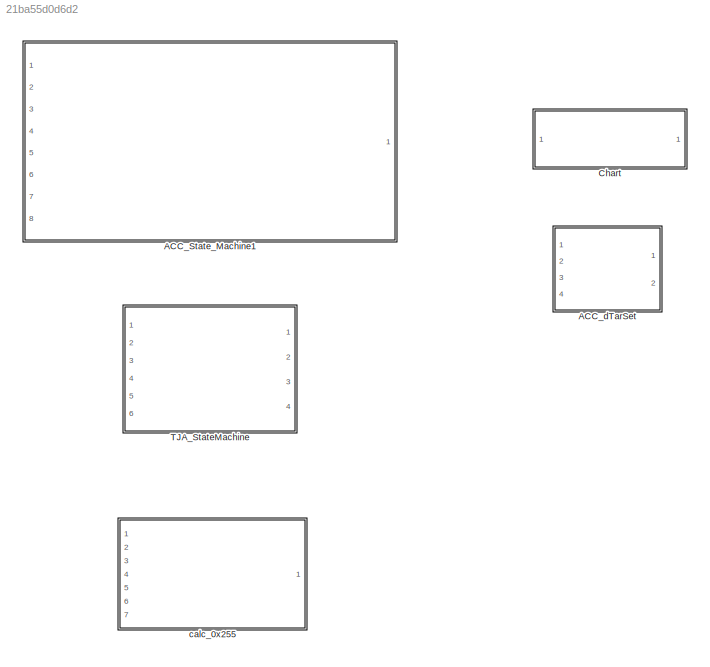
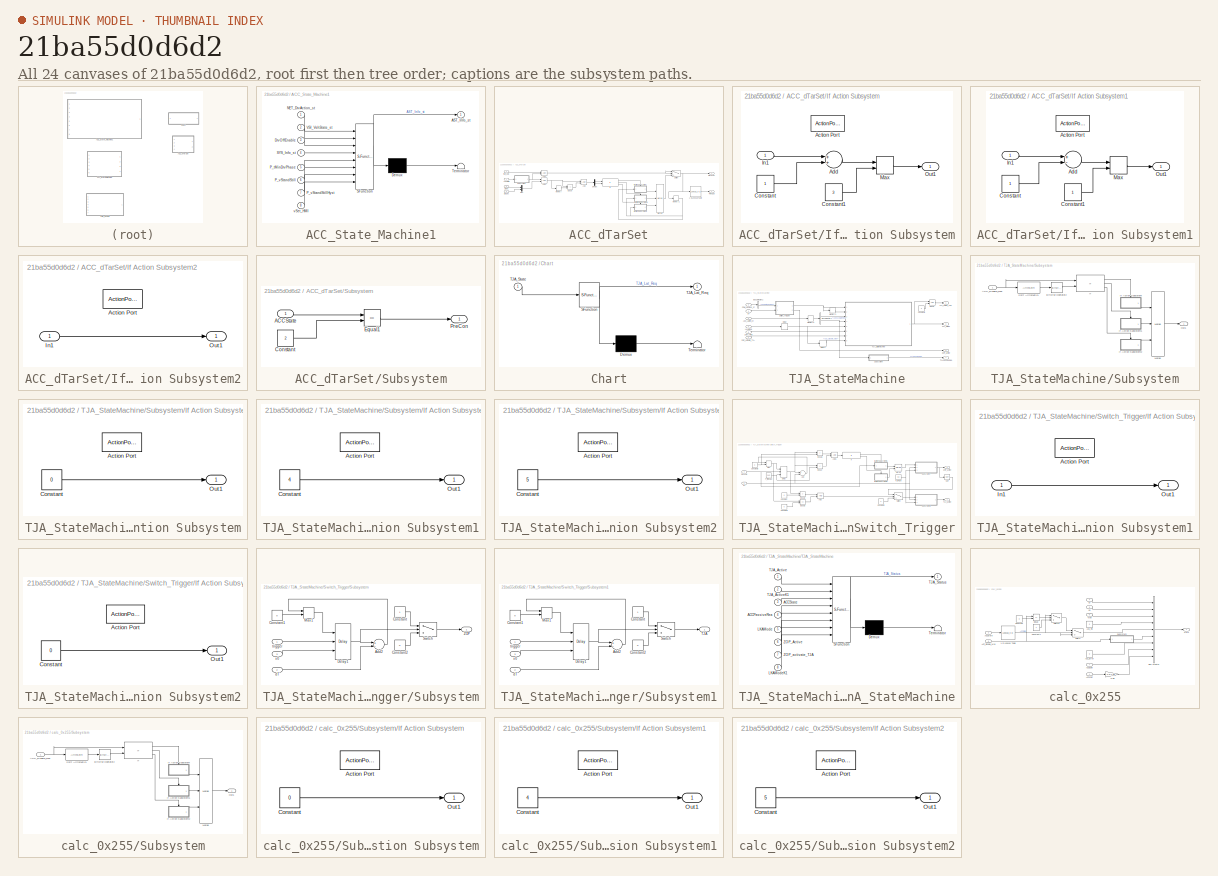
[diagram: thumbnail index - all 24 canvases of the model, root first then tree order]
MODEL slx_21ba55d0d6d2
KIND model
CONFIG AbsTol = auto
CONFIG EnableMultiTasking = off
CONFIG FixedStep = auto
CONFIG MaxStep = auto
CONFIG MinStep = auto
CONFIG RelTol = 1e-3
CONFIG SampleTimeConstraint = Unconstrained
CONFIG Solver = VariableStepAuto
CONFIG SolverName = VariableStepAuto
CONFIG StartTime = 0.0
CONFIG StopTime = 10.0
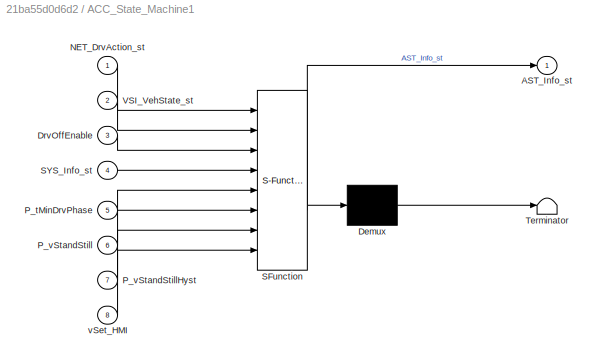
BLOCK [SubSystem] ACC_State_Machine1
  ErrorFcn = Stateflow.Translate.translate
  PermitHierarchicalResolution = ExplicitOnly
  Ports = [8, 1]
  RequestExecContextInheritance = off
  SFBlockType = Chart
  TreatAsAtomicUnit = on
BLOCK [Demux] ACC_State_Machine1/ Demux 
  Outputs = 1
  Ports = [1, 1]
BLOCK [S-Function] ACC_State_Machine1/ SFunction 
  EnableBusSupport = on
  FunctionName = sf_sfun
  PortCounts = [8 2]
  Ports = [8, 2]
  SFcnIsStateOwnerBlock = off
  SFunctionDeploymentMode = off
  Tag = Stateflow S-Function TJA_StateMachine 1
BLOCK [Terminator] ACC_State_Machine1/ Terminator 
BLOCK [Outport] ACC_State_Machine1/AST_Info_st
  IconDisplay = Port number
BLOCK [Inport] ACC_State_Machine1/DrvOffEnable
  IconDisplay = Port number
  Port = 3
BLOCK [Inport] ACC_State_Machine1/NET_DrvAction_st
  IconDisplay = Port number
BLOCK [Inport] ACC_State_Machine1/P_tMinDrvPhase
  IconDisplay = Port number
  Port = 5
BLOCK [Inport] ACC_State_Machine1/P_vStandStill
  IconDisplay = Port number
  Port = 6
BLOCK [Inport] ACC_State_Machine1/P_vStandStillHyst
  IconDisplay = Port number
  Port = 7
BLOCK [Inport] ACC_State_Machine1/SYS_Info_st
  IconDisplay = Port number
  Port = 4
BLOCK [Inport] ACC_State_Machine1/VSI_VehState_st
  IconDisplay = Port number
  Port = 2
BLOCK [Inport] ACC_State_Machine1/vSet_HMI
  IconDisplay = Port number
  Port = 8
BLOCK [SubSystem] ACC_dTarSet
  Ports = [4, 2]
  RequestExecContextInheritance = off
BLOCK [Lookup_n-D] ACC_dTarSet/1-D Lookup Table
  BreakpointsForDimension1 = [1 2 3]
  InternalRulePriority = Speed
  InterpMethod = Flat
  NumberOfTableDimensions = 1
  Ports = [1, 1]
  RndMeth = Simplest
  Table = [1.2 1.8 2.1]
BLOCK [Inport] ACC_dTarSet/ACCState
  IconDisplay = Port number
BLOCK [Logic] ACC_dTarSet/AND
  AllPortsSameDT = off
  OutDataTypeStr = boolean
  Ports = [2, 1]
BLOCK [Logic] ACC_dTarSet/AND1
  AllPortsSameDT = off
  OutDataTypeStr = boolean
  Ports = [2, 1]
BLOCK [Logic] ACC_dTarSet/AND2
  AllPortsSameDT = off
  OutDataTypeStr = boolean
  Ports = [2, 1]
BLOCK [Demux] ACC_dTarSet/Demux
  DisplayOption = bar
  Outputs = 2
  Ports = [1, 2]
BLOCK [Inport] ACC_dTarSet/DisDec
  IconDisplay = Port number
  Port = 3
BLOCK [Inport] ACC_dTarSet/DisInc
  IconDisplay = Port number
  Port = 2
BLOCK [Outport] ACC_dTarSet/DisLevel
  IconDisplay = Port number
  Port = 2
BLOCK [RelationalOperator] ACC_dTarSet/Equal
  InputSameDT = off
  Operator = ~=
  OutDataTypeStr = boolean
  Ports = [2, 1]
  RndMeth = Simplest
BLOCK [SubSystem] ACC_dTarSet/If Action Subsystem
  Ports = [1, 1, 0, 0, 0, 0, 0, 1]
  RequestExecContextInheritance = off
  TreatAsAtomicUnit = on
BLOCK [ActionPort] ACC_dTarSet/If Action Subsystem/Action Port
BLOCK [Sum] ACC_dTarSet/If Action Subsystem/Add
  InputSameDT = off
  OutDataTypeStr = Inherit: Inherit via internal rule
  Ports = [2, 1]
  SaturateOnIntegerOverflow = off
BLOCK [Constant] ACC_dTarSet/If Action Subsystem/Constant
  OutDataTypeStr = single
BLOCK [Constant] ACC_dTarSet/If Action Subsystem/Constant1
  OutDataTypeStr = single
  Value = 3
BLOCK [Inport] ACC_dTarSet/If Action Subsystem/In1
  IconDisplay = Port number
BLOCK [MinMax] ACC_dTarSet/If Action Subsystem/Max
  InputSameDT = off
  Inputs = 2
  Ports = [2, 1]
  SaturateOnIntegerOverflow = off
BLOCK [Outport] ACC_dTarSet/If Action Subsystem/Out1
  IconDisplay = Port number
BLOCK [SubSystem] ACC_dTarSet/If Action Subsystem1
  Ports = [1, 1, 0, 0, 0, 0, 0, 1]
  RequestExecContextInheritance = off
  TreatAsAtomicUnit = on
BLOCK [ActionPort] ACC_dTarSet/If Action Subsystem1/Action Port
BLOCK [Sum] ACC_dTarSet/If Action Subsystem1/Add
  InputSameDT = off
  Inputs = +-
  OutDataTypeStr = Inherit: Inherit via internal rule
  Ports = [2, 1]
  SaturateOnIntegerOverflow = off
BLOCK [Constant] ACC_dTarSet/If Action Subsystem1/Constant
  OutDataTypeStr = single
BLOCK [Constant] ACC_dTarSet/If Action Subsystem1/Constant1
  OutDataTypeStr = single
BLOCK [Inport] ACC_dTarSet/If Action Subsystem1/In1
  IconDisplay = Port number
BLOCK [MinMax] ACC_dTarSet/If Action Subsystem1/Max
  Function = max
  InputSameDT = off
  Inputs = 2
  Ports = [2, 1]
  SaturateOnIntegerOverflow = off
BLOCK [Outport] ACC_dTarSet/If Action Subsystem1/Out1
  IconDisplay = Port number
BLOCK [SubSystem] ACC_dTarSet/If Action Subsystem2
  Ports = [1, 1, 0, 0, 0, 0, 0, 1]
  RequestExecContextInheritance = off
  TreatAsAtomicUnit = on
BLOCK [ActionPort] ACC_dTarSet/If Action Subsystem2/Action Port
BLOCK [Inport] ACC_dTarSet/If Action Subsystem2/In1
  IconDisplay = Port number
BLOCK [Outport] ACC_dTarSet/If Action Subsystem2/Out1
  IconDisplay = Port number
BLOCK [If] ACC_dTarSet/If1
  ElseIfExpressions = u2 == 1
  IfExpression = u1 == 1
  NumInputs = 2
  Ports = [2, 3]
BLOCK [Memory] ACC_dTarSet/Memory
BLOCK [Memory] ACC_dTarSet/Memory1
  InitialCondition = 3
BLOCK [Merge] ACC_dTarSet/Merge
  InitialOutput = 0
  Inputs = 3
  Ports = [3, 1]
BLOCK [Mux] ACC_dTarSet/Mux
  DisplayOption = bar
  Inputs = 2
  Ports = [2, 1]
BLOCK [SubSystem] ACC_dTarSet/Subsystem
  Ports = [1, 1]
  RequestExecContextInheritance = off
BLOCK [Inport] ACC_dTarSet/Subsystem/ACCState
  IconDisplay = Port number
BLOCK [Constant] ACC_dTarSet/Subsystem/Constant
  OutDataTypeStr = single
  Value = 2
BLOCK [RelationalOperator] ACC_dTarSet/Subsystem/Equal1
  InputSameDT = off
  Operator = ==
  OutDataTypeStr = boolean
  Ports = [2, 1]
  RndMeth = Simplest
BLOCK [Outport] ACC_dTarSet/Subsystem/PreCon
  IconDisplay = Port number
BLOCK [Switch] ACC_dTarSet/Switch
  Criteria = u2 > Threshold
  InputSameDT = off
  SaturateOnIntegerOverflow = off
BLOCK [Outport] ACC_dTarSet/TimeGap
  IconDisplay = Port number
BLOCK [Inport] ACC_dTarSet/tSet_HMI
  IconDisplay = Port number
  Port = 4
BLOCK [SubSystem] Chart
  ErrorFcn = Stateflow.Translate.translate
  PermitHierarchicalResolution = ExplicitOnly
  Ports = [1, 1]
  RequestExecContextInheritance = off
  SFBlockType = Chart
  TreatAsAtomicUnit = on
BLOCK [Demux] Chart/ Demux 
  Outputs = 1
  Ports = [1, 1]
BLOCK [S-Function] Chart/ SFunction 
  EnableBusSupport = on
  FunctionName = sf_sfun
  PortCounts = [1 2]
  Ports = [1, 2]
  SFcnIsStateOwnerBlock = off
  SFunctionDeploymentMode = off
  Tag = Stateflow S-Function TJA_StateMachine 6
BLOCK [Terminator] Chart/ Terminator 
BLOCK [Outport] Chart/TJA_Lat_Req
  IconDisplay = Port number
BLOCK [Inport] Chart/TJA_State
  IconDisplay = Port number
BLOCK [SubSystem] TJA_StateMachine
  Ports = [6, 4]
  RequestExecContextInheritance = off
BLOCK [Inport] TJA_StateMachine/ACC_LgtCtrl_st
  IconDisplay = Port number
  Port = 3
BLOCK [BusSelector] TJA_StateMachine/Bus Selector1
  OutputAsBus = off
  OutputSignals = ACCVLCMainReq,ACC_Disable_Msk
  Ports = [1, 2]
BLOCK [BusSelector] TJA_StateMachine/Bus Selector2
  OutputAsBus = off
  OutputSignals = x1E1.CCSwStsRsmSwA
  Ports = [1, 1]
BLOCK [Inport] TJA_StateMachine/COM_VehBus_st
  IconDisplay = Port number
  Port = 2
BLOCK [Constant] TJA_StateMachine/Constant3
  OutDataTypeStr = single
  Value = 3
BLOCK [Delay] TJA_StateMachine/Delay
  DelayLength = 1
  InputPortMap = u0
  Ports = [1, 1]
BLOCK [Delay] TJA_StateMachine/Delay1
  DelayLength = 1
  InputPortMap = u0
  Ports = [1, 1]
BLOCK [RelationalOperator] TJA_StateMachine/Equal
  InputSameDT = off
  OutDataTypeStr = boolean
  Ports = [2, 1]
  RndMeth = Simplest
BLOCK [Inport] TJA_StateMachine/LKAMode
  IconDisplay = Port number
  Port = 4
BLOCK [Memory] TJA_StateMachine/Memory1
BLOCK [Memory] TJA_StateMachine/Memory2
BLOCK [SubSystem] TJA_StateMachine/Subsystem
  Ports = [1, 1]
  RequestExecContextInheritance = off
BLOCK [Inport] TJA_StateMachine/Subsystem/ACC_Disable_Msk
  IconDisplay = Port number
BLOCK [Reference] TJA_StateMachine/Subsystem/Bitwise Operator2  REF=simulink/Logic and Bit
Operations/Bitwise
Operator
  Ports = [1, 1]
  SourceBlock = simulink/Logic and Bit\nOperations/Bitwise\nOperator
  SourceProductBaseCode = SL
  SourceProductName = Simulink
  SourceType = Bitwise Operator
BLOCK [If] TJA_StateMachine/Subsystem/If
  ElseIfExpressions = u2 == 1
  IfExpression = u1 == 0
  NumInputs = 2
  Ports = [2, 3]
BLOCK [SubSystem] TJA_StateMachine/Subsystem/If Action Subsystem
  Ports = [0, 1, 0, 0, 0, 0, 0, 1]
  RequestExecContextInheritance = off
  TreatAsAtomicUnit = on
BLOCK [ActionPort] TJA_StateMachine/Subsystem/If Action Subsystem/Action Port
BLOCK [Constant] TJA_StateMachine/Subsystem/If Action Subsystem/Constant
  OutDataTypeStr = single
  Value = 0
BLOCK [Outport] TJA_StateMachine/Subsystem/If Action Subsystem/Out1
  IconDisplay = Port number
BLOCK [SubSystem] TJA_StateMachine/Subsystem/If Action Subsystem1
  Ports = [0, 1, 0, 0, 0, 0, 0, 1]
  RequestExecContextInheritance = off
  TreatAsAtomicUnit = on
BLOCK [ActionPort] TJA_StateMachine/Subsystem/If Action Subsystem1/Action Port
BLOCK [Constant] TJA_StateMachine/Subsystem/If Action Subsystem1/Constant
  OutDataTypeStr = single
  Value = 4
BLOCK [Outport] TJA_StateMachine/Subsystem/If Action Subsystem1/Out1
  IconDisplay = Port number
BLOCK [SubSystem] TJA_StateMachine/Subsystem/If Action Subsystem2
  Ports = [0, 1, 0, 0, 0, 0, 0, 1]
  RequestExecContextInheritance = off
  TreatAsAtomicUnit = on
BLOCK [ActionPort] TJA_StateMachine/Subsystem/If Action Subsystem2/Action Port
BLOCK [Constant] TJA_StateMachine/Subsystem/If Action Subsystem2/Constant
  OutDataTypeStr = single
  Value = 5
BLOCK [Outport] TJA_StateMachine/Subsystem/If Action Subsystem2/Out1
  IconDisplay = Port number
BLOCK [Merge] TJA_StateMachine/Subsystem/Merge
  Inputs = 3
  Ports = [3, 1]
BLOCK [Outport] TJA_StateMachine/Subsystem/Out1
  IconDisplay = Port number
BLOCK [ArithShift] TJA_StateMachine/Subsystem/Shift Arithmetic1
  BitShiftDirection = Right
  BitShiftNumber = 3
  InputPortMap = u0
  Ports = [1, 1]
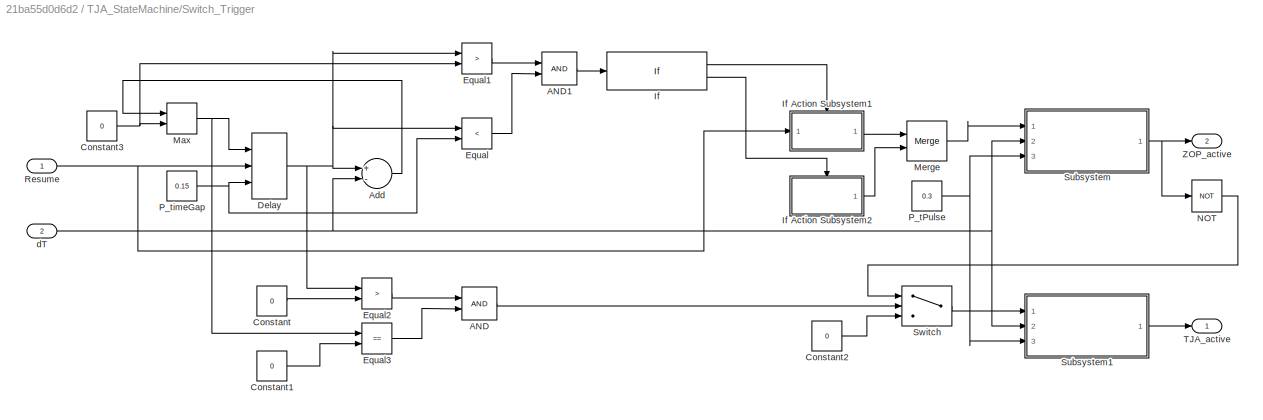
BLOCK [SubSystem] TJA_StateMachine/Switch_Trigger
  Ports = [2, 2]
  RequestExecContextInheritance = off
BLOCK [Logic] TJA_StateMachine/Switch_Trigger/AND
  AllPortsSameDT = off
  OutDataTypeStr = boolean
  Ports = [2, 1]
BLOCK [Logic] TJA_StateMachine/Switch_Trigger/AND1
  AllPortsSameDT = off
  OutDataTypeStr = boolean
  Ports = [2, 1]
BLOCK [Sum] TJA_StateMachine/Switch_Trigger/Add
  InputSameDT = off
  Inputs = +-
  OutDataTypeStr = Inherit: Inherit via internal rule
  Ports = [2, 1]
  SaturateOnIntegerOverflow = off
BLOCK [Constant] TJA_StateMachine/Switch_Trigger/Constant
  Value = 0
BLOCK [Constant] TJA_StateMachine/Switch_Trigger/Constant1
  Value = 0
BLOCK [Constant] TJA_StateMachine/Switch_Trigger/Constant2
  Value = 0
BLOCK [Constant] TJA_StateMachine/Switch_Trigger/Constant3
  OutDataTypeStr = single
  Value = 0
BLOCK [Delay] TJA_StateMachine/Switch_Trigger/Delay
  DelayLength = 1
  ExternalReset = Falling
  InitialConditionSource = Input port
  InputPortMap = u0,r5,p4
  Ports = [3, 1]
BLOCK [RelationalOperator] TJA_StateMachine/Switch_Trigger/Equal
  InputSameDT = off
  Operator = <
  OutDataTypeStr = boolean
  Ports = [2, 1]
  RndMeth = Simplest
BLOCK [RelationalOperator] TJA_StateMachine/Switch_Trigger/Equal1
  InputSameDT = off
  Operator = >
  OutDataTypeStr = boolean
  Ports = [2, 1]
  RndMeth = Simplest
BLOCK [RelationalOperator] TJA_StateMachine/Switch_Trigger/Equal2
  InputSameDT = off
  Operator = >
  OutDataTypeStr = boolean
  Ports = [2, 1]
  RndMeth = Simplest
BLOCK [RelationalOperator] TJA_StateMachine/Switch_Trigger/Equal3
  InputSameDT = off
  Operator = ==
  OutDataTypeStr = boolean
  Ports = [2, 1]
  RndMeth = Simplest
BLOCK [If] TJA_StateMachine/Switch_Trigger/If
  IfExpression = u1 == 1
  Ports = [1, 2]
BLOCK [SubSystem] TJA_StateMachine/Switch_Trigger/If Action Subsystem1
  Ports = [1, 1, 0, 0, 0, 0, 0, 1]
  RequestExecContextInheritance = off
  TreatAsAtomicUnit = on
BLOCK [ActionPort] TJA_StateMachine/Switch_Trigger/If Action Subsystem1/Action Port
BLOCK [Inport] TJA_StateMachine/Switch_Trigger/If Action Subsystem1/In1
  IconDisplay = Port number
BLOCK [Outport] TJA_StateMachine/Switch_Trigger/If Action Subsystem1/Out1
  IconDisplay = Port number
BLOCK [SubSystem] TJA_StateMachine/Switch_Trigger/If Action Subsystem2
  Ports = [0, 1, 0, 0, 0, 0, 0, 1]
  RequestExecContextInheritance = off
  TreatAsAtomicUnit = on
BLOCK [ActionPort] TJA_StateMachine/Switch_Trigger/If Action Subsystem2/Action Port
BLOCK [Constant] TJA_StateMachine/Switch_Trigger/If Action Subsystem2/Constant
  OutDataTypeStr = boolean
  Value = 0
BLOCK [Outport] TJA_StateMachine/Switch_Trigger/If Action Subsystem2/Out1
  IconDisplay = Port number
BLOCK [MinMax] TJA_StateMachine/Switch_Trigger/Max
  Function = max
  InputSameDT = off
  Inputs = 2
  Ports = [2, 1]
  SaturateOnIntegerOverflow = off
BLOCK [Merge] TJA_StateMachine/Switch_Trigger/Merge
  Ports = [2, 1]
BLOCK [Logic] TJA_StateMachine/Switch_Trigger/NOT
  AllPortsSameDT = off
  Operator = NOT
  OutDataTypeStr = boolean
  Ports = [1, 1]
BLOCK [Constant] TJA_StateMachine/Switch_Trigger/P_tPulse
  Value = 0.3
BLOCK [Constant] TJA_StateMachine/Switch_Trigger/P_timeGap
  Value = 0.15
BLOCK [Inport] TJA_StateMachine/Switch_Trigger/Resume
  IconDisplay = Port number
BLOCK [SubSystem] TJA_StateMachine/Switch_Trigger/Subsystem
  Ports = [3, 1]
  RequestExecContextInheritance = off
BLOCK [Sum] TJA_StateMachine/Switch_Trigger/Subsystem/Add2
  InputSameDT = off
  Inputs = +-
  OutDataTypeStr = Inherit: Inherit via internal rule
  Ports = [2, 1]
  SaturateOnIntegerOverflow = off
BLOCK [Constant] TJA_StateMachine/Switch_Trigger/Subsystem/Constant
BLOCK [Constant] TJA_StateMachine/Switch_Trigger/Subsystem/Constant1
  Value = 0
BLOCK [Constant] TJA_StateMachine/Switch_Trigger/Subsystem/Constant2
  Value = 0
BLOCK [Delay] TJA_StateMachine/Switch_Trigger/Subsystem/Delay1
  DelayLength = 1
  ExternalReset = Rising
  InitialConditionSource = Input port
  InputPortMap = u0,r5,p4
  Ports = [3, 1]
BLOCK [MinMax] TJA_StateMachine/Switch_Trigger/Subsystem/Max1
  Function = max
  InputSameDT = off
  Inputs = 2
  Ports = [2, 1]
  SaturateOnIntegerOverflow = off
BLOCK [Switch] TJA_StateMachine/Switch_Trigger/Subsystem/Switch
  Criteria = u2 > Threshold
  InputSameDT = off
  SaturateOnIntegerOverflow = off
BLOCK [Outport] TJA_StateMachine/Switch_Trigger/Subsystem/ZOP
  IconDisplay = Port number
BLOCK [Inport] TJA_StateMachine/Switch_Trigger/Subsystem/dT
  IconDisplay = Port number
  Port = 2
BLOCK [Inport] TJA_StateMachine/Switch_Trigger/Subsystem/trigger
  IconDisplay = Port number
BLOCK [Inport] TJA_StateMachine/Switch_Trigger/Subsystem/x0
  IconDisplay = Port number
  Port = 3
BLOCK [SubSystem] TJA_StateMachine/Switch_Trigger/Subsystem1
  Ports = [3, 1]
  RequestExecContextInheritance = off
BLOCK [Sum] TJA_StateMachine/Switch_Trigger/Subsystem1/Add2
  InputSameDT = off
  Inputs = +-
  OutDataTypeStr = Inherit: Inherit via internal rule
  Ports = [2, 1]
  SaturateOnIntegerOverflow = off
BLOCK [Constant] TJA_StateMachine/Switch_Trigger/Subsystem1/Constant
BLOCK [Constant] TJA_StateMachine/Switch_Trigger/Subsystem1/Constant1
  Value = 0
BLOCK [Constant] TJA_StateMachine/Switch_Trigger/Subsystem1/Constant2
  Value = 0
BLOCK [Delay] TJA_StateMachine/Switch_Trigger/Subsystem1/Delay1
  DelayLength = 1
  ExternalReset = Rising
  InitialConditionSource = Input port
  InputPortMap = u0,r5,p4
  Ports = [3, 1]
BLOCK [MinMax] TJA_StateMachine/Switch_Trigger/Subsystem1/Max1
  Function = max
  InputSameDT = off
  Inputs = 2
  Ports = [2, 1]
  SaturateOnIntegerOverflow = off
BLOCK [Switch] TJA_StateMachine/Switch_Trigger/Subsystem1/Switch
  Criteria = u2 > Threshold
  InputSameDT = off
  SaturateOnIntegerOverflow = off
BLOCK [Outport] TJA_StateMachine/Switch_Trigger/Subsystem1/TJA
  IconDisplay = Port number
BLOCK [Inport] TJA_StateMachine/Switch_Trigger/Subsystem1/dT
  IconDisplay = Port number
  Port = 2
BLOCK [Inport] TJA_StateMachine/Switch_Trigger/Subsystem1/trigger
  IconDisplay = Port number
BLOCK [Inport] TJA_StateMachine/Switch_Trigger/Subsystem1/x0
  IconDisplay = Port number
  Port = 3
BLOCK [Switch] TJA_StateMachine/Switch_Trigger/Switch
  Criteria = u2 > Threshold
  InputSameDT = off
  SaturateOnIntegerOverflow = off
BLOCK [Outport] TJA_StateMachine/Switch_Trigger/TJA_active
  IconDisplay = Port number
BLOCK [Outport] TJA_StateMachine/Switch_Trigger/ZOP_active
  IconDisplay = Port number
  Port = 2
BLOCK [Inport] TJA_StateMachine/Switch_Trigger/dT
  IconDisplay = Port number
  Port = 2
BLOCK [Outport] TJA_StateMachine/TJAPassiveRea
  IconDisplay = Port number
  Port = 4
BLOCK [SubSystem] TJA_StateMachine/TJA_StateMachine
  ErrorFcn = Stateflow.Translate.translate
  PermitHierarchicalResolution = ExplicitOnly
  Ports = [8, 1]
  RequestExecContextInheritance = off
  SFBlockType = Chart
  TreatAsAtomicUnit = on
BLOCK [Demux] TJA_StateMachine/TJA_StateMachine/ Demux 
  Outputs = 1
  Ports = [1, 1]
BLOCK [S-Function] TJA_StateMachine/TJA_StateMachine/ SFunction 
  EnableBusSupport = on
  FunctionName = sf_sfun
  PortCounts = [8 2]
  Ports = [8, 2]
  SFcnIsStateOwnerBlock = off
  SFunctionDeploymentMode = off
  Tag = Stateflow S-Function TJA_StateMachine 3
BLOCK [Terminator] TJA_StateMachine/TJA_StateMachine/ Terminator 
BLOCK [Inport] TJA_StateMachine/TJA_StateMachine/ACCPassiveRea
  IconDisplay = Port number
  Port = 4
BLOCK [Inport] TJA_StateMachine/TJA_StateMachine/ACCState
  IconDisplay = Port number
  Port = 3
BLOCK [Inport] TJA_StateMachine/TJA_StateMachine/LKAMode
  IconDisplay = Port number
  Port = 5
BLOCK [Inport] TJA_StateMachine/TJA_StateMachine/LKAModeK1
  IconDisplay = Port number
  Port = 8
BLOCK [Inport] TJA_StateMachine/TJA_StateMachine/TJA_Active
  IconDisplay = Port number
BLOCK [Inport] TJA_StateMachine/TJA_StateMachine/TJA_ActiveK1
  IconDisplay = Port number
  Port = 2
BLOCK [Outport] TJA_StateMachine/TJA_StateMachine/TJA_Status
  IconDisplay = Port number
BLOCK [Inport] TJA_StateMachine/TJA_StateMachine/ZOP_Active
  IconDisplay = Port number
  Port = 6
BLOCK [Inport] TJA_StateMachine/TJA_StateMachine/ZOP_activate_TJA
  IconDisplay = Port number
  Port = 7
BLOCK [Outport] TJA_StateMachine/TJA_Status
  IconDisplay = Port number
  Port = 3
BLOCK [Outport] TJA_StateMachine/TJA_active_ACC
  IconDisplay = Port number
BLOCK [Inport] TJA_StateMachine/ZOP_Active
  IconDisplay = Port number
  Port = 5
BLOCK [Inport] TJA_StateMachine/ZOP_activate_TJA
  IconDisplay = Port number
  Port = 6
BLOCK [Outport] TJA_StateMachine/ZOP_active
  IconDisplay = Port number
  Port = 2
BLOCK [Inport] TJA_StateMachine/dT
  IconDisplay = Port number
BLOCK [SubSystem] calc_0x255
  Ports = [7, 1]
  RequestExecContextInheritance = off
BLOCK [Lookup_n-D] calc_0x255/1-D Lookup Table
  BreakpointsForDimension1 = [0,1,2,3,4]
  InternalRulePriority = Speed
  InterpMethod = Flat
  NumberOfTableDimensions = 1
  Ports = [1, 1]
  RndMeth = Simplest
  Table = [0,2,3,3,4]
BLOCK [Inport] calc_0x255/ACCState
  IconDisplay = Port number
  Port = 2
BLOCK [Inport] calc_0x255/ACC_Disable_Msk
  IconDisplay = Port number
  Port = 6
BLOCK [Constant] calc_0x255/ACC_Error
  OutDataTypeStr = single
  Value = 0
BLOCK [Constant] calc_0x255/ACC_Tip
  OutDataTypeStr = single
  Value = 0
BLOCK [Inport] calc_0x255/ACCdSet
  IconDisplay = Port number
  Port = 7
BLOCK [Inport] calc_0x255/ACCvSet
  IconDisplay = Port number
BLOCK [BusCreator] calc_0x255/Bus Creator
  DisplayOption = bar
  InheritFromInputs = off
  Inputs = 9
  NonVirtualBus = on
  OutDataTypeStr = Bus: x255
  Ports = [9, 1]
BLOCK [Constant] calc_0x255/Constant
  Value = 0
BLOCK [Constant] calc_0x255/Constant1
BLOCK [RelationalOperator] calc_0x255/Equal
  InputSameDT = off
  Operator = ==
  OutDataTypeStr = boolean
  Ports = [2, 1]
  RndMeth = Simplest
BLOCK [Gain] calc_0x255/Gain
  Gain = 3.6*1.05
  OutDataTypeStr = Inherit: Inherit via internal rule
  ParamDataTypeStr = Inherit: Inherit via internal rule
  SaturateOnIntegerOverflow = off
BLOCK [Outport] calc_0x255/Out1
  IconDisplay = Port number
BLOCK [SubSystem] calc_0x255/Subsystem
  Ports = [1, 1]
  RequestExecContextInheritance = off
BLOCK [Inport] calc_0x255/Subsystem/ACC_Disable_Msk
  IconDisplay = Port number
BLOCK [Reference] calc_0x255/Subsystem/Bitwise Operator2  REF=simulink/Logic and Bit
Operations/Bitwise
Operator
  Ports = [1, 1]
  SourceBlock = simulink/Logic and Bit\nOperations/Bitwise\nOperator
  SourceProductBaseCode = SL
  SourceProductName = Simulink
  SourceType = Bitwise Operator
BLOCK [If] calc_0x255/Subsystem/If
  ElseIfExpressions = u2 == 1
  IfExpression = u1 == 0
  NumInputs = 2
  Ports = [2, 3]
BLOCK [SubSystem] calc_0x255/Subsystem/If Action Subsystem
  Ports = [0, 1, 0, 0, 0, 0, 0, 1]
  RequestExecContextInheritance = off
  TreatAsAtomicUnit = on
BLOCK [ActionPort] calc_0x255/Subsystem/If Action Subsystem/Action Port
BLOCK [Constant] calc_0x255/Subsystem/If Action Subsystem/Constant
  OutDataTypeStr = single
  Value = 0
BLOCK [Outport] calc_0x255/Subsystem/If Action Subsystem/Out1
  IconDisplay = Port number
BLOCK [SubSystem] calc_0x255/Subsystem/If Action Subsystem1
  Ports = [0, 1, 0, 0, 0, 0, 0, 1]
  RequestExecContextInheritance = off
  TreatAsAtomicUnit = on
BLOCK [ActionPort] calc_0x255/Subsystem/If Action Subsystem1/Action Port
BLOCK [Constant] calc_0x255/Subsystem/If Action Subsystem1/Constant
  OutDataTypeStr = single
  Value = 4
BLOCK [Outport] calc_0x255/Subsystem/If Action Subsystem1/Out1
  IconDisplay = Port number
BLOCK [SubSystem] calc_0x255/Subsystem/If Action Subsystem2
  Ports = [0, 1, 0, 0, 0, 0, 0, 1]
  RequestExecContextInheritance = off
  TreatAsAtomicUnit = on
BLOCK [ActionPort] calc_0x255/Subsystem/If Action Subsystem2/Action Port
BLOCK [Constant] calc_0x255/Subsystem/If Action Subsystem2/Constant
  OutDataTypeStr = single
  Value = 5
BLOCK [Outport] calc_0x255/Subsystem/If Action Subsystem2/Out1
  IconDisplay = Port number
BLOCK [Merge] calc_0x255/Subsystem/Merge
  Inputs = 3
  Ports = [3, 1]
BLOCK [Outport] calc_0x255/Subsystem/Out1
  IconDisplay = Port number
BLOCK [ArithShift] calc_0x255/Subsystem/Shift Arithmetic1
  BitShiftDirection = Right
  BitShiftNumber = 3
  InputPortMap = u0
  Ports = [1, 1]
BLOCK [Switch] calc_0x255/Switch
  Criteria = u2 > Threshold
  InputSameDT = off
  OutDataTypeStr = single
  SaturateOnIntegerOverflow = off
BLOCK [Switch] calc_0x255/Switch1
  Criteria = u2 > Threshold
  InputSameDT = off
  SaturateOnIntegerOverflow = off
BLOCK [Inport] calc_0x255/Type
  IconDisplay = Port number
  Port = 5
BLOCK [Inport] calc_0x255/dx
  IconDisplay = Port number
  Port = 3
BLOCK [Inport] calc_0x255/dy
  IconDisplay = Port number
  Port = 4
LINE ACC_dTarSet/1-D Lookup Table:1 -> ACC_dTarSet/TimeGap:1
LINE ACC_dTarSet/ACCState:1 -> ACC_dTarSet/Subsystem:1
NET ACC_dTarSet/AND1:1 -> ACC_dTarSet/AND:1, ACC_dTarSet/Equal:1, ACC_dTarSet/Memory:1
NET ACC_dTarSet/AND2:1 -> ACC_dTarSet/Switch:1, ACC_dTarSet/Switch:2
LINE ACC_dTarSet/AND:1 -> ACC_dTarSet/Demux:1
LINE ACC_dTarSet/Demux:1 -> ACC_dTarSet/If1:1
LINE ACC_dTarSet/Demux:2 -> ACC_dTarSet/If1:2
LINE ACC_dTarSet/DisDec:1 -> ACC_dTarSet/Mux:2
LINE ACC_dTarSet/DisInc:1 -> ACC_dTarSet/Mux:1
LINE ACC_dTarSet/Equal:1 -> ACC_dTarSet/AND:2
LINE ACC_dTarSet/If Action Subsystem/Add:1 -> ACC_dTarSet/If Action Subsystem/Max:1
LINE ACC_dTarSet/If Action Subsystem/Constant1:1 -> ACC_dTarSet/If Action Subsystem/Max:2
LINE ACC_dTarSet/If Action Subsystem/Constant:1 -> ACC_dTarSet/If Action Subsystem/Add:2
LINE ACC_dTarSet/If Action Subsystem/In1:1 -> ACC_dTarSet/If Action Subsystem/Add:1
LINE ACC_dTarSet/If Action Subsystem/Max:1 -> ACC_dTarSet/If Action Subsystem/Out1:1
LINE ACC_dTarSet/If Action Subsystem1/Add:1 -> ACC_dTarSet/If Action Subsystem1/Max:1
LINE ACC_dTarSet/If Action Subsystem1/Constant1:1 -> ACC_dTarSet/If Action Subsystem1/Max:2
LINE ACC_dTarSet/If Action Subsystem1/Constant:1 -> ACC_dTarSet/If Action Subsystem1/Add:2
LINE ACC_dTarSet/If Action Subsystem1/In1:1 -> ACC_dTarSet/If Action Subsystem1/Add:1
LINE ACC_dTarSet/If Action Subsystem1/Max:1 -> ACC_dTarSet/If Action Subsystem1/Out1:1
LINE ACC_dTarSet/If Action Subsystem1:1 -> ACC_dTarSet/Merge:2
LINE ACC_dTarSet/If Action Subsystem2/In1:1 -> ACC_dTarSet/If Action Subsystem2/Out1:1
LINE ACC_dTarSet/If Action Subsystem2:1 -> ACC_dTarSet/Merge:3
LINE ACC_dTarSet/If Action Subsystem:1 -> ACC_dTarSet/Merge:1
LINE ACC_dTarSet/If1:1 -> ACC_dTarSet/If Action Subsystem:ifaction
LINE ACC_dTarSet/If1:2 -> ACC_dTarSet/If Action Subsystem1:ifaction
LINE ACC_dTarSet/If1:3 -> ACC_dTarSet/If Action Subsystem2:ifaction
NET ACC_dTarSet/Memory1:1 -> ACC_dTarSet/If Action Subsystem1:1, ACC_dTarSet/If Action Subsystem2:1, ACC_dTarSet/If Action Subsystem:1
LINE ACC_dTarSet/Memory:1 -> ACC_dTarSet/Equal:2
LINE ACC_dTarSet/Merge:1 -> ACC_dTarSet/Switch:3
LINE ACC_dTarSet/Mux:1 -> ACC_dTarSet/AND1:2
LINE ACC_dTarSet/Subsystem/ACCState:1 -> ACC_dTarSet/Subsystem/Equal1:1
LINE ACC_dTarSet/Subsystem/Constant:1 -> ACC_dTarSet/Subsystem/Equal1:2
LINE ACC_dTarSet/Subsystem/Equal1:1 -> ACC_dTarSet/Subsystem/PreCon:1
NET ACC_dTarSet/Subsystem:1 -> ACC_dTarSet/AND1:1, ACC_dTarSet/AND2:2
NET ACC_dTarSet/Switch:1 -> ACC_dTarSet/1-D Lookup Table:1, ACC_dTarSet/DisLevel:1, ACC_dTarSet/Memory1:1
LINE ACC_dTarSet/tSet_HMI:1 -> ACC_dTarSet/AND2:1
LINE TJA_StateMachine/ACC_LgtCtrl_st:1 -> TJA_StateMachine/Memory2:1
LINE TJA_StateMachine/Bus Selector1:1 -> TJA_StateMachine/TJA_StateMachine:3
NET TJA_StateMachine/Bus Selector1:2 -> TJA_StateMachine/Subsystem:1, TJA_StateMachine/TJA_StateMachine:4
LINE TJA_StateMachine/Bus Selector2:1 -> TJA_StateMachine/Switch_Trigger:1
LINE TJA_StateMachine/COM_VehBus_st:1 -> TJA_StateMachine/Bus Selector2:1
LINE TJA_StateMachine/Constant3:1 -> TJA_StateMachine/Equal:2
LINE TJA_StateMachine/Delay1:1 -> TJA_StateMachine/TJA_StateMachine:8
NET TJA_StateMachine/Delay:1 -> TJA_StateMachine/Delay1:1, TJA_StateMachine/TJA_StateMachine:5
LINE TJA_StateMachine/Equal:1 -> TJA_StateMachine/TJA_active_ACC:1
LINE TJA_StateMachine/LKAMode:1 -> TJA_StateMachine/Delay:1
LINE TJA_StateMachine/Memory1:1 -> TJA_StateMachine/TJA_StateMachine:2
LINE TJA_StateMachine/Memory2:1 -> TJA_StateMachine/Bus Selector1:1
NET TJA_StateMachine/Subsystem/ACC_Disable_Msk:1 -> TJA_StateMachine/Subsystem/If:1, TJA_StateMachine/Subsystem/Shift Arithmetic1:1
LINE TJA_StateMachine/Subsystem/Bitwise Operator2:1 -> TJA_StateMachine/Subsystem/If:2
LINE TJA_StateMachine/Subsystem/If Action Subsystem/Constant:1 -> TJA_StateMachine/Subsystem/If Action Subsystem/Out1:1
LINE TJA_StateMachine/Subsystem/If Action Subsystem1/Constant:1 -> TJA_StateMachine/Subsystem/If Action Subsystem1/Out1:1
LINE TJA_StateMachine/Subsystem/If Action Subsystem1:1 -> TJA_StateMachine/Subsystem/Merge:2
LINE TJA_StateMachine/Subsystem/If Action Subsystem2/Constant:1 -> TJA_StateMachine/Subsystem/If Action Subsystem2/Out1:1
LINE TJA_StateMachine/Subsystem/If Action Subsystem2:1 -> TJA_StateMachine/Subsystem/Merge:3
LINE TJA_StateMachine/Subsystem/If Action Subsystem:1 -> TJA_StateMachine/Subsystem/Merge:1
LINE TJA_StateMachine/Subsystem/If:1 -> TJA_StateMachine/Subsystem/If Action Subsystem:ifaction
LINE TJA_StateMachine/Subsystem/If:2 -> TJA_StateMachine/Subsystem/If Action Subsystem1:ifaction
LINE TJA_StateMachine/Subsystem/If:3 -> TJA_StateMachine/Subsystem/If Action Subsystem2:ifaction
LINE TJA_StateMachine/Subsystem/Merge:1 -> TJA_StateMachine/Subsystem/Out1:1
LINE TJA_StateMachine/Subsystem/Shift Arithmetic1:1 -> TJA_StateMachine/Subsystem/Bitwise Operator2:1
LINE TJA_StateMachine/Subsystem:1 -> TJA_StateMachine/TJAPassiveRea:1
LINE TJA_StateMachine/Switch_Trigger/AND1:1 -> TJA_StateMachine/Switch_Trigger/If:1
LINE TJA_StateMachine/Switch_Trigger/AND:1 -> TJA_StateMachine/Switch_Trigger/Switch:2
LINE TJA_StateMachine/Switch_Trigger/Add:1 -> TJA_StateMachine/Switch_Trigger/Max:1
LINE TJA_StateMachine/Switch_Trigger/Constant1:1 -> TJA_StateMachine/Switch_Trigger/Equal3:2
LINE TJA_StateMachine/Switch_Trigger/Constant2:1 -> TJA_StateMachine/Switch_Trigger/Switch:3
NET TJA_StateMachine/Switch_Trigger/Constant3:1 -> TJA_StateMachine/Switch_Trigger/Equal1:2, TJA_StateMachine/Switch_Trigger/Max:2
LINE TJA_StateMachine/Switch_Trigger/Constant:1 -> TJA_StateMachine/Switch_Trigger/Equal2:2
NET TJA_StateMachine/Switch_Trigger/Delay:1 -> TJA_StateMachine/Switch_Trigger/Add:1, TJA_StateMachine/Switch_Trigger/Equal1:1, TJA_StateMachine/Switch_Trigger/Equal2:1, TJA_StateMachine/Switch_Trigger/Equal:1
LINE TJA_StateMachine/Switch_Trigger/Equal1:1 -> TJA_StateMachine/Switch_Trigger/AND1:1
LINE TJA_StateMachine/Switch_Trigger/Equal2:1 -> TJA_StateMachine/Switch_Trigger/AND:1
LINE TJA_StateMachine/Switch_Trigger/Equal3:1 -> TJA_StateMachine/Switch_Trigger/AND:2
LINE TJA_StateMachine/Switch_Trigger/Equal:1 -> TJA_StateMachine/Switch_Trigger/AND1:2
LINE TJA_StateMachine/Switch_Trigger/If Action Subsystem1/In1:1 -> TJA_StateMachine/Switch_Trigger/If Action Subsystem1/Out1:1
LINE TJA_StateMachine/Switch_Trigger/If Action Subsystem1:1 -> TJA_StateMachine/Switch_Trigger/Merge:1
LINE TJA_StateMachine/Switch_Trigger/If Action Subsystem2/Constant:1 -> TJA_StateMachine/Switch_Trigger/If Action Subsystem2/Out1:1
LINE TJA_StateMachine/Switch_Trigger/If Action Subsystem2:1 -> TJA_StateMachine/Switch_Trigger/Merge:2
LINE TJA_StateMachine/Switch_Trigger/If:1 -> TJA_StateMachine/Switch_Trigger/If Action Subsystem1:ifaction
LINE TJA_StateMachine/Switch_Trigger/If:2 -> TJA_StateMachine/Switch_Trigger/If Action Subsystem2:ifaction
NET TJA_StateMachine/Switch_Trigger/Max:1 -> TJA_StateMachine/Switch_Trigger/Delay:1, TJA_StateMachine/Switch_Trigger/Equal3:1
LINE TJA_StateMachine/Switch_Trigger/Merge:1 -> TJA_StateMachine/Switch_Trigger/Subsystem:1
LINE TJA_StateMachine/Switch_Trigger/NOT:1 -> TJA_StateMachine/Switch_Trigger/Switch:1
NET TJA_StateMachine/Switch_Trigger/P_tPulse:1 -> TJA_StateMachine/Switch_Trigger/Subsystem1:3, TJA_StateMachine/Switch_Trigger/Subsystem:3
NET TJA_StateMachine/Switch_Trigger/P_timeGap:1 -> TJA_StateMachine/Switch_Trigger/Delay:3, TJA_StateMachine/Switch_Trigger/Equal:2
NET TJA_StateMachine/Switch_Trigger/Resume:1 -> TJA_StateMachine/Switch_Trigger/Delay:2, TJA_StateMachine/Switch_Trigger/If Action Subsystem1:1
LINE TJA_StateMachine/Switch_Trigger/Subsystem/Add2:1 -> TJA_StateMachine/Switch_Trigger/Subsystem/Max1:1
LINE TJA_StateMachine/Switch_Trigger/Subsystem/Constant1:1 -> TJA_StateMachine/Switch_Trigger/Subsystem/Max1:2
LINE TJA_StateMachine/Switch_Trigger/Subsystem/Constant2:1 -> TJA_StateMachine/Switch_Trigger/Subsystem/Switch:3
LINE TJA_StateMachine/Switch_Trigger/Subsystem/Constant:1 -> TJA_StateMachine/Switch_Trigger/Subsystem/Switch:1
NET TJA_StateMachine/Switch_Trigger/Subsystem/Delay1:1 -> TJA_StateMachine/Switch_Trigger/Subsystem/Add2:1, TJA_StateMachine/Switch_Trigger/Subsystem/Switch:2
LINE TJA_StateMachine/Switch_Trigger/Subsystem/Max1:1 -> TJA_StateMachine/Switch_Trigger/Subsystem/Delay1:1
LINE TJA_StateMachine/Switch_Trigger/Subsystem/Switch:1 -> TJA_StateMachine/Switch_Trigger/Subsystem/ZOP:1
LINE TJA_StateMachine/Switch_Trigger/Subsystem/dT:1 -> TJA_StateMachine/Switch_Trigger/Subsystem/Add2:2
LINE TJA_StateMachine/Switch_Trigger/Subsystem/trigger:1 -> TJA_StateMachine/Switch_Trigger/Subsystem/Delay1:2
LINE TJA_StateMachine/Switch_Trigger/Subsystem/x0:1 -> TJA_StateMachine/Switch_Trigger/Subsystem/Delay1:3
LINE TJA_StateMachine/Switch_Trigger/Subsystem1/Add2:1 -> TJA_StateMachine/Switch_Trigger/Subsystem1/Max1:1
LINE TJA_StateMachine/Switch_Trigger/Subsystem1/Constant1:1 -> TJA_StateMachine/Switch_Trigger/Subsystem1/Max1:2
LINE TJA_StateMachine/Switch_Trigger/Subsystem1/Constant2:1 -> TJA_StateMachine/Switch_Trigger/Subsystem1/Switch:3
LINE TJA_StateMachine/Switch_Trigger/Subsystem1/Constant:1 -> TJA_StateMachine/Switch_Trigger/Subsystem1/Switch:1
NET TJA_StateMachine/Switch_Trigger/Subsystem1/Delay1:1 -> TJA_StateMachine/Switch_Trigger/Subsystem1/Add2:1, TJA_StateMachine/Switch_Trigger/Subsystem1/Switch:2
LINE TJA_StateMachine/Switch_Trigger/Subsystem1/Max1:1 -> TJA_StateMachine/Switch_Trigger/Subsystem1/Delay1:1
LINE TJA_StateMachine/Switch_Trigger/Subsystem1/Switch:1 -> TJA_StateMachine/Switch_Trigger/Subsystem1/TJA:1
LINE TJA_StateMachine/Switch_Trigger/Subsystem1/dT:1 -> TJA_StateMachine/Switch_Trigger/Subsystem1/Add2:2
LINE TJA_StateMachine/Switch_Trigger/Subsystem1/trigger:1 -> TJA_StateMachine/Switch_Trigger/Subsystem1/Delay1:2
LINE TJA_StateMachine/Switch_Trigger/Subsystem1/x0:1 -> TJA_StateMachine/Switch_Trigger/Subsystem1/Delay1:3
LINE TJA_StateMachine/Switch_Trigger/Subsystem1:1 -> TJA_StateMachine/Switch_Trigger/TJA_active:1
NET TJA_StateMachine/Switch_Trigger/Subsystem:1 -> TJA_StateMachine/Switch_Trigger/NOT:1, TJA_StateMachine/Switch_Trigger/ZOP_active:1
LINE TJA_StateMachine/Switch_Trigger/Switch:1 -> TJA_StateMachine/Switch_Trigger/Subsystem1:1
NET TJA_StateMachine/Switch_Trigger/dT:1 -> TJA_StateMachine/Switch_Trigger/Add:2, TJA_StateMachine/Switch_Trigger/Subsystem1:2, TJA_StateMachine/Switch_Trigger/Subsystem:2
NET TJA_StateMachine/Switch_Trigger:1 -> TJA_StateMachine/Memory1:1, TJA_StateMachine/TJA_StateMachine:1
LINE TJA_StateMachine/Switch_Trigger:2 -> TJA_StateMachine/ZOP_active:1
NET TJA_StateMachine/TJA_StateMachine:1 -> TJA_StateMachine/Equal:1, TJA_StateMachine/TJA_Status:1
LINE TJA_StateMachine/ZOP_Active:1 -> TJA_StateMachine/TJA_StateMachine:6
LINE TJA_StateMachine/ZOP_activate_TJA:1 -> TJA_StateMachine/TJA_StateMachine:7
LINE TJA_StateMachine/dT:1 -> TJA_StateMachine/Switch_Trigger:2
NET calc_0x255/1-D Lookup Table:1 -> calc_0x255/Switch1:1, calc_0x255/Switch:2, calc_0x255/Switch:3
LINE calc_0x255/ACCState:1 -> calc_0x255/1-D Lookup Table:1
NET calc_0x255/ACC_Disable_Msk:1 -> calc_0x255/Equal:1, calc_0x255/Subsystem:1
LINE calc_0x255/ACC_Error:1 -> calc_0x255/Bus Creator:7
LINE calc_0x255/ACC_Tip:1 -> calc_0x255/Bus Creator:4
LINE calc_0x255/ACCdSet:1 -> calc_0x255/Bus Creator:8
LINE calc_0x255/ACCvSet:1 -> calc_0x255/Gain:1
LINE calc_0x255/Bus Creator:1 -> calc_0x255/Out1:1
LINE calc_0x255/Constant1:1 -> calc_0x255/Switch1:3
LINE calc_0x255/Constant:1 -> calc_0x255/Equal:2
LINE calc_0x255/Equal:1 -> calc_0x255/Switch1:2
LINE calc_0x255/Gain:1 -> calc_0x255/Bus Creator:9
NET calc_0x255/Subsystem/ACC_Disable_Msk:1 -> calc_0x255/Subsystem/If:1, calc_0x255/Subsystem/Shift Arithmetic1:1
LINE calc_0x255/Subsystem/Bitwise Operator2:1 -> calc_0x255/Subsystem/If:2
LINE calc_0x255/Subsystem/If Action Subsystem/Constant:1 -> calc_0x255/Subsystem/If Action Subsystem/Out1:1
LINE calc_0x255/Subsystem/If Action Subsystem1/Constant:1 -> calc_0x255/Subsystem/If Action Subsystem1/Out1:1
LINE calc_0x255/Subsystem/If Action Subsystem1:1 -> calc_0x255/Subsystem/Merge:2
LINE calc_0x255/Subsystem/If Action Subsystem2/Constant:1 -> calc_0x255/Subsystem/If Action Subsystem2/Out1:1
LINE calc_0x255/Subsystem/If Action Subsystem2:1 -> calc_0x255/Subsystem/Merge:3
LINE calc_0x255/Subsystem/If Action Subsystem:1 -> calc_0x255/Subsystem/Merge:1
LINE calc_0x255/Subsystem/If:1 -> calc_0x255/Subsystem/If Action Subsystem:ifaction
LINE calc_0x255/Subsystem/If:2 -> calc_0x255/Subsystem/If Action Subsystem1:ifaction
LINE calc_0x255/Subsystem/If:3 -> calc_0x255/Subsystem/If Action Subsystem2:ifaction
LINE calc_0x255/Subsystem/Merge:1 -> calc_0x255/Subsystem/Out1:1
LINE calc_0x255/Subsystem/Shift Arithmetic1:1 -> calc_0x255/Subsystem/Bitwise Operator2:1
LINE calc_0x255/Subsystem:1 -> calc_0x255/Bus Creator:6
LINE calc_0x255/Switch1:1 -> calc_0x255/Switch:1
LINE calc_0x255/Switch:1 -> calc_0x255/Bus Creator:5
LINE calc_0x255/Type:1 -> calc_0x255/Bus Creator:3
LINE calc_0x255/dx:1 -> calc_0x255/Bus Creator:2
LINE calc_0x255/dy:1 -> calc_0x255/Bus Creator:1
note: NET lines group one-source signal fan-out (src -> all destinations, sorted); 1:1 wires keep LINE
CHART ACC_State_Machine1 states=7 transitions=13
  STATE_LABEL 'MainState\n0\tOFF\n1\tPASSIVE\n2\tACTIVE_Drive\n3\tACTIVE_Standstill\n4\tOVERRIDE'
  STATE_LABEL 'OFF\n\nen:\nAST_Info_st.MainState = 0;\nAST_Info_st.tMinInDrv = 0;\nAST_Info_st.vSet = 0;'
  STATE_LABEL 'OVERRIDE\n\nen:\nAST_Info_st.MainState = 4;\nAST_Info_st.tMinInDrv = 0;'
  STATE_LABEL 'PASSIVE\n\nen:\nAST_Info_st.MainState = 1;\nAST_Info_st.tMinInDrv = 0;'
  STATE_LABEL 'ACTIVE\n\nen:\nif ((NET_DrvAction_st.ACC_SetSw == 1)&&(NET_DrvAction_st.ACC_SetSwK1 == 0))\n    AST_Info_st.vSet = round(VSI_VehState_st.vRef*1.05*3.6)/1.05/3.6;\nend\nAST_Info_st.vSet = min(AST_Info_st.vSet, (120/1.05)/3.6);\nAST_Info_st.vSet = max(AST_Info_st.vSet, (30/1.05)/3.6);\ndu:\nif ((NET_DrvAction_st.ACC_SpdIncSw == 1)&&(NET_DrvAction_st.ACC_SpdIncSwK1 == 0))\n    AST_Info_st.vSet = AST_Info_st.vS...<+483ch>'
  STATE_LABEL 'Drive\nen:\nAST_Info_st.MainState = 2;\ndu:\nif(VSI_VehState_st.vRef > P_vStandStillHyst)\n    if(AST_Info_st.tMinInDrv > SYS_Info_st.dT)\n        AST_Info_st.tMinInDrv = AST_Info_st.tMinInDrv - SYS_Info_st.dT;\n    else\n        AST_Info_st.tMinInDrv = 0;\n    end\nend'
  STATE_LABEL 'Standstill\nen:\nAST_Info_st.MainState = 3;\nAST_Info_st.tMinInDrv = P_tMinDrvPhase;'
  STATE_LABEL '[VSI_VehState_st.vRef < P_vStandStill...\n&&AST_Info_st.tMinInDrv == 0]'
  STATE_LABEL '[DrvOffEnable == 1]'
  STATE_LABEL 'Drive\nen:\nAST_Info_st.MainState = 2;\ndu:\nif(VSI_VehState_st.vRef > P_vStandStillHyst)\n    if(AST_Info_st.tMinInDrv > SYS_Info_st.dT)\n        AST_Info_st.tMinInDrv = AST_Info_st.tMinInDrv - SYS_Info_st.dT;\n    else\n        AST_Info_st.tMinInDrv = 0;\n    end\nend'
  STATE_LABEL 'Standstill\nen:\nAST_Info_st.MainState = 3;\nAST_Info_st.tMinInDrv = P_tMinDrvPhase;'
CHART TJA_StateMachine/TJA_StateMachine states=9 transitions=22
  STATE_LABEL 'TJA_Status:\n0 Off\n1 Passive\n2 Standby\n3 Active\n4 Override\n5 Error'
  STATE_LABEL 'ACCState:\n0 Off\n1 Passive\n2 Drive\n3 Standstill\n4 Override'
  STATE_LABEL 'Off\n\nen:\nTJA_Status = 0;'
  STATE_LABEL 'Passive\n\nen:\nTJA_Status = 1;'
  STATE_LABEL 'Standby\n\nen:\nTJA_Status = 2;'
  STATE_LABEL 'LKAMode:\n0 Error\n1 Off\n2 Idle\n3 Ready\n4 Active'
  STATE_LABEL 'Error\n\nen:\nTJA_Status = 5;'
  STATE_LABEL 'Override\n\nen:\nTJA_Status = 4;'
  STATE_LABEL 'Active\n\nen:\nTJA_Status = 3;'
CHART Chart states=2 transitions=3
  STATE_LABEL 'TJA_Lat_Req_Reset\nen:\nTJA_Lat_Req=0;'
  STATE_LABEL 'TJA_Lat_Req_Set\nen:\nTJA_Lat_Req=1;'
